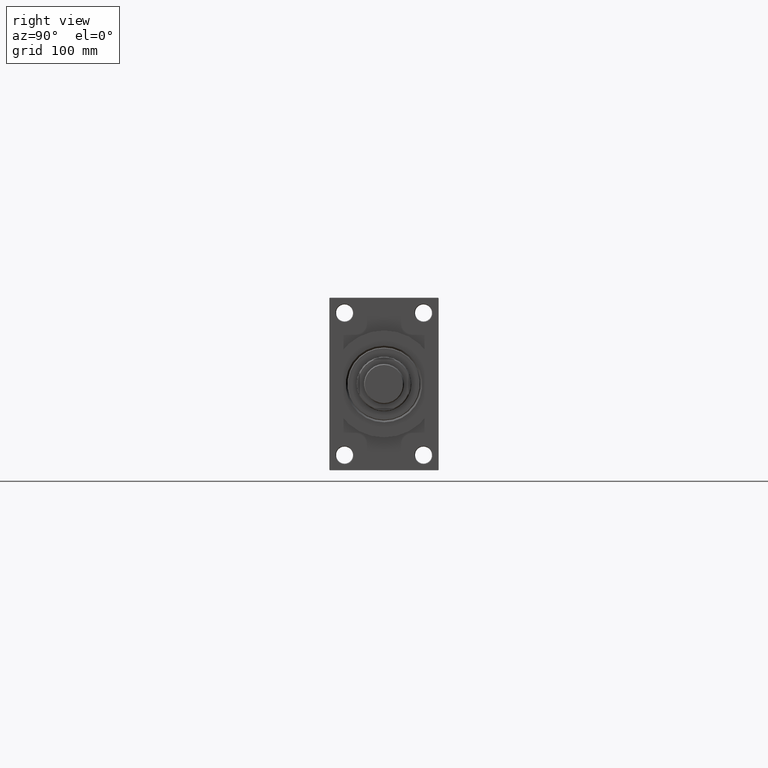
[diagram: clean part render]
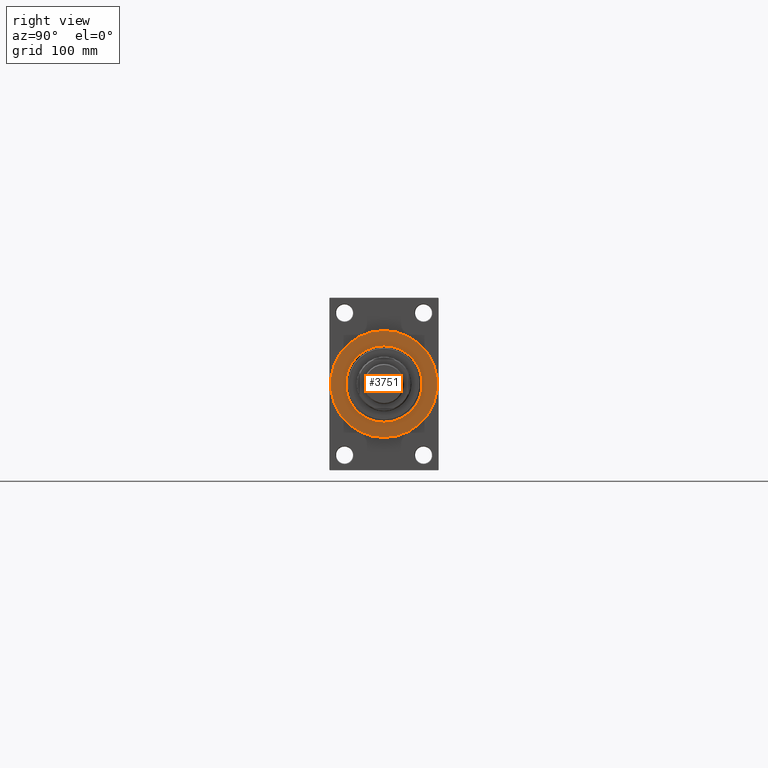
[diagram: same view with one face highlighted and labeled with its STEP entity id]
A machine part, right view. The second image highlights one B-rep face of the part: STEP entity #3751.
In plain terms, the highlighted planar face has unit normal (1, 0, 0).
Its self-contained STEP definition (entity closure, byte-faithful):
#197 = AXIS2_PLACEMENT_3D ( 'NONE', #17580, #13260, #14199 ) ;
#1722 = DIRECTION ( 'NONE',  ( 0.000000000000000000, 0.000000000000000000, -1.000000000000000000 ) ) ;
#3751 = ADVANCED_FACE ( 'NONE', ( #35891, #24805 ), #39504, .T. ) ;
#6612 = CIRCLE ( 'NONE', #33523, 44.00000000000000000 ) ;
#8220 = VERTEX_POINT ( 'NONE', #28693 ) ;
#10683 = DIRECTION ( 'NONE',  ( 0.000000000000000000, 0.000000000000000000, -1.000000000000000000 ) ) ;
#10889 = CARTESIAN_POINT ( 'NONE',  ( 486.0000000000000000, 5.388445916248353619E-15, -44.00000000000000000 ) ) ;
#11058 = DIRECTION ( 'NONE',  ( 0.000000000000000000, 0.000000000000000000, -1.000000000000000000 ) ) ;
#11388 = AXIS2_PLACEMENT_3D ( 'NONE', #47296, #28972, #10683 ) ;
#11555 = VERTEX_POINT ( 'NONE', #39735 ) ;
#11564 = EDGE_CURVE ( 'NONE', #11555, #8220, #13403, .T. ) ;
#12925 = ORIENTED_EDGE ( 'NONE', *, *, #41477, .T. ) ;
#13260 = DIRECTION ( 'NONE',  ( 1.000000000000000000, 0.000000000000000000, 0.000000000000000000 ) ) ;
#13403 = CIRCLE ( 'NONE', #17251, 31.49999999999991829 ) ;
#14199 = DIRECTION ( 'NONE',  ( 0.000000000000000000, 0.000000000000000000, -1.000000000000000000 ) ) ;
#15434 = EDGE_CURVE ( 'NONE', #8220, #11555, #32001, .T. ) ;
#16166 = DIRECTION ( 'NONE',  ( -1.000000000000000000, -0.000000000000000000, -0.000000000000000000 ) ) ;
#17251 = AXIS2_PLACEMENT_3D ( 'NONE', #25506, #40206, #11058 ) ;
#17580 = CARTESIAN_POINT ( 'NONE',  ( 486.0000000000000000, 0.000000000000000000, 0.000000000000000000 ) ) ;
#22073 = EDGE_LOOP ( 'NONE', ( #28878, #44823 ) ) ;
#23147 = CARTESIAN_POINT ( 'NONE',  ( 486.0000000000000000, 0.000000000000000000, 0.000000000000000000 ) ) ;
#24289 = CARTESIAN_POINT ( 'NONE',  ( 486.0000000000000000, 0.000000000000000000, 0.000000000000000000 ) ) ;
#24805 = FACE_OUTER_BOUND ( 'NONE', #40981, .T. ) ;
#25506 = CARTESIAN_POINT ( 'NONE',  ( 486.0000000000000000, 0.000000000000000000, 0.000000000000000000 ) ) ;
#25992 = CIRCLE ( 'NONE', #11388, 44.00000000000000000 ) ;
#27677 = DIRECTION ( 'NONE',  ( 0.000000000000000000, 0.000000000000000000, -1.000000000000000000 ) ) ;
#28693 = CARTESIAN_POINT ( 'NONE',  ( 486.0000000000000000, 0.000000000000000000, -31.49999999999991829 ) ) ;
#28878 = ORIENTED_EDGE ( 'NONE', *, *, #15434, .T. ) ;
#28972 = DIRECTION ( 'NONE',  ( 1.000000000000000000, 0.000000000000000000, 0.000000000000000000 ) ) ;
#30172 = VERTEX_POINT ( 'NONE', #10889 ) ;
#31773 = DIRECTION ( 'NONE',  ( 1.000000000000000000, 0.000000000000000000, 0.000000000000000000 ) ) ;
#32001 = CIRCLE ( 'NONE', #35859, 31.49999999999991829 ) ;
#33523 = AXIS2_PLACEMENT_3D ( 'NONE', #24289, #31773, #27677 ) ;
#35504 = CARTESIAN_POINT ( 'NONE',  ( 486.0000000000000000, 0.000000000000000000, 44.00000000000000000 ) ) ;
#35859 = AXIS2_PLACEMENT_3D ( 'NONE', #23147, #16166, #1722 ) ;
#35891 = FACE_BOUND ( 'NONE', #22073, .T. ) ;
#39504 = PLANE ( 'NONE',  #197 ) ;
#39735 = CARTESIAN_POINT ( 'NONE',  ( 486.0000000000000000, 3.857637417314152434E-15, 31.49999999999991829 ) ) ;
#40206 = DIRECTION ( 'NONE',  ( -1.000000000000000000, -0.000000000000000000, -0.000000000000000000 ) ) ;
#40786 = VERTEX_POINT ( 'NONE', #35504 ) ;
#40981 = EDGE_LOOP ( 'NONE', ( #43162, #12925 ) ) ;
#41477 = EDGE_CURVE ( 'NONE', #30172, #40786, #6612, .T. ) ;
#43162 = ORIENTED_EDGE ( 'NONE', *, *, #45086, .T. ) ;
#44823 = ORIENTED_EDGE ( 'NONE', *, *, #11564, .T. ) ;
#45086 = EDGE_CURVE ( 'NONE', #40786, #30172, #25992, .T. ) ;
#47296 = CARTESIAN_POINT ( 'NONE',  ( 486.0000000000000000, 0.000000000000000000, 0.000000000000000000 ) ) ;